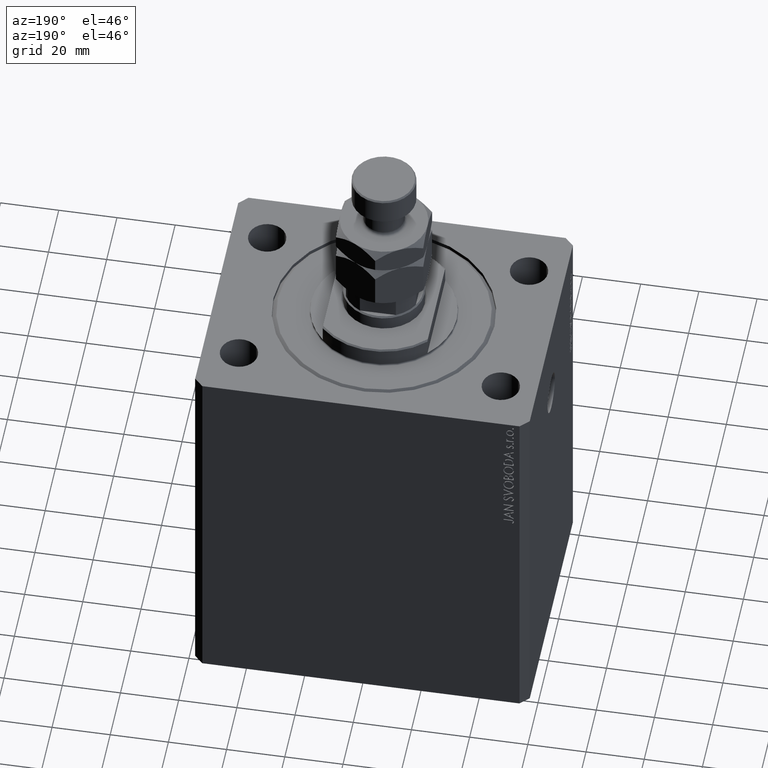
[diagram: clean part render]
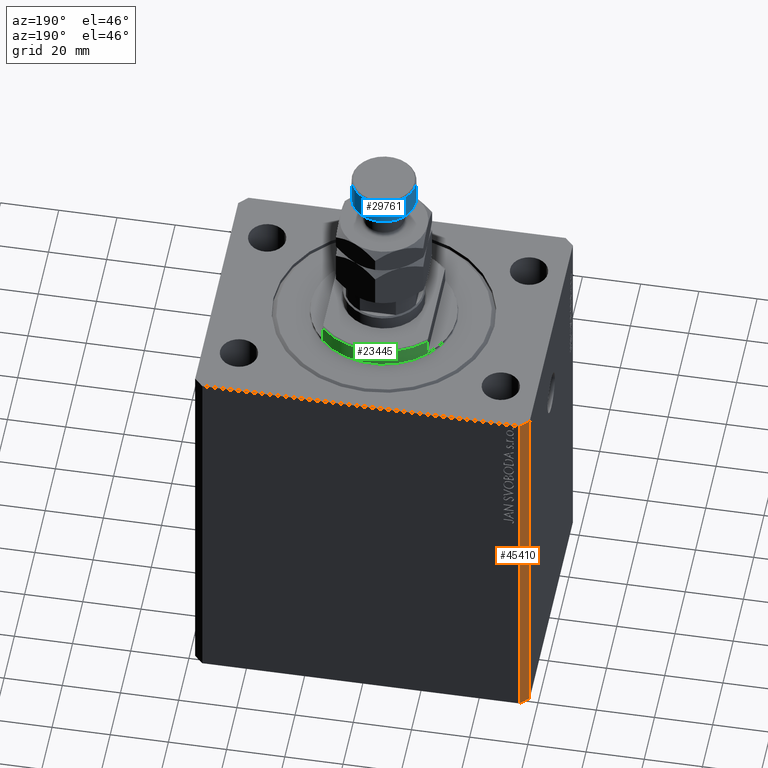
[diagram: same view with three faces highlighted in distinct colors, each labeled with its STEP entity id]
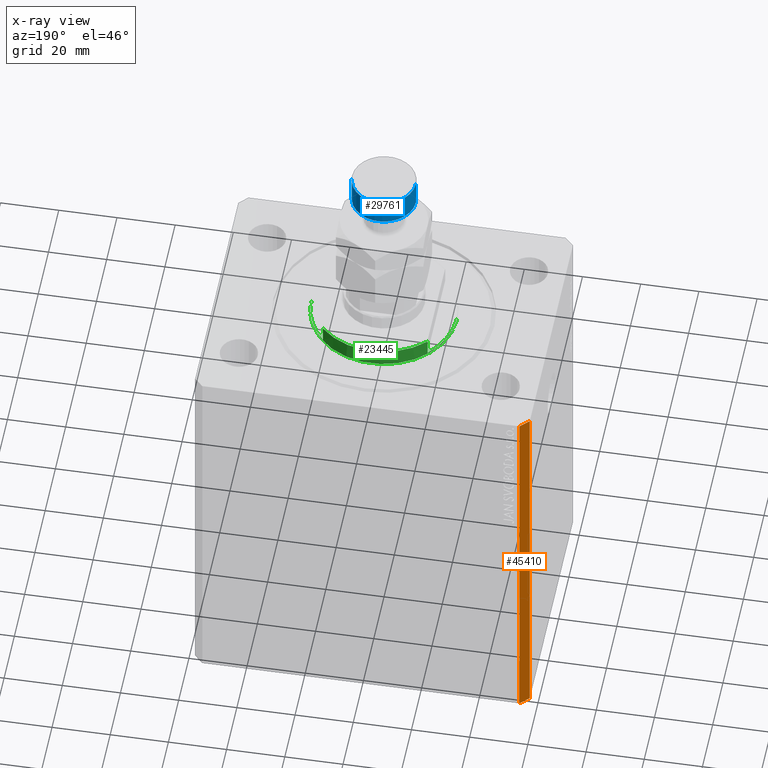
[diagram: x-ray of the same camera — body ghosted, the three highlighted faces saturated]
A machine part, auxiliary view with three faces highlighted in distinct colors.
The next image is the same camera in x-ray (body ghosted, the three faces saturated) — at least one of them is partly hidden behind the body in this view.
Their STEP definitions:

[orange] entity #45410 — the highlighted planar face has unit normal (-0.7071, 0.7071, 0).
#136 = VERTEX_POINT ( 'NONE', #39592 ) ;
#1852 = CARTESIAN_POINT ( 'NONE',  ( -54.49999999999999289, 45.00000000000000000, -135.0000000000000000 ) ) ;
#2691 = LINE ( 'NONE', #17708, #30264 ) ;
#4772 = EDGE_CURVE ( 'NONE', #31819, #10127, #14104, .T. ) ;
#10127 = VERTEX_POINT ( 'NONE', #22222 ) ;
#10561 = DIRECTION ( 'NONE',  ( 0.000000000000000000, 0.000000000000000000, 1.000000000000000000 ) ) ;
#12498 = EDGE_CURVE ( 'NONE', #45818, #136, #22352, .T. ) ;
#13909 = VECTOR ( 'NONE', #42034, 1000.000000000000000 ) ;
#14104 = LINE ( 'NONE', #17614, #16749 ) ;
#14609 = VECTOR ( 'NONE', #36589, 1000.000000000000000 ) ;
#16167 = DIRECTION ( 'NONE',  ( -0.7071067811865483499, -0.7071067811865466846, 0.000000000000000000 ) ) ;
#16264 = ORIENTED_EDGE ( 'NONE', *, *, #12498, .T. ) ;
#16749 = VECTOR ( 'NONE', #10561, 1000.000000000000000 ) ;
#17614 = CARTESIAN_POINT ( 'NONE',  ( -54.49999999999999289, 45.00000000000000000, -135.0000000000000000 ) ) ;
#17708 = CARTESIAN_POINT ( 'NONE',  ( -54.49999999999999289, 45.00000000000000000, 0.000000000000000000 ) ) ;
#19448 = PLANE ( 'NONE',  #23810 ) ;
#19910 = FACE_OUTER_BOUND ( 'NONE', #39285, .T. ) ;
#21219 = ORIENTED_EDGE ( 'NONE', *, *, #4772, .F. ) ;
#22222 = CARTESIAN_POINT ( 'NONE',  ( -54.49999999999999289, 45.00000000000000000, 0.000000000000000000 ) ) ;
#22352 = LINE ( 'NONE', #43601, #14609 ) ;
#23641 = DIRECTION ( 'NONE',  ( -0.7071067811865466846, 0.7071067811865483499, 0.000000000000000000 ) ) ;
#23810 = AXIS2_PLACEMENT_3D ( 'NONE', #1852, #23641, #16167 ) ;
#25684 = ORIENTED_EDGE ( 'NONE', *, *, #32115, .F. ) ;
#26634 = CARTESIAN_POINT ( 'NONE',  ( -54.49999999999999289, 45.00000000000000000, -135.0000000000000000 ) ) ;
#30264 = VECTOR ( 'NONE', #31958, 1000.000000000000000 ) ;
#31461 = ORIENTED_EDGE ( 'NONE', *, *, #33756, .T. ) ;
#31734 = CARTESIAN_POINT ( 'NONE',  ( -54.49999999999999289, 45.00000000000000000, -135.0000000000000000 ) ) ;
#31819 = VERTEX_POINT ( 'NONE', #26634 ) ;
#31958 = DIRECTION ( 'NONE',  ( -0.7071067811865483499, -0.7071067811865466846, 0.000000000000000000 ) ) ;
#32115 = EDGE_CURVE ( 'NONE', #10127, #136, #2691, .T. ) ;
#33756 = EDGE_CURVE ( 'NONE', #31819, #45818, #34545, .T. ) ;
#34545 = LINE ( 'NONE', #31734, #13909 ) ;
#36589 = DIRECTION ( 'NONE',  ( 0.000000000000000000, 0.000000000000000000, 1.000000000000000000 ) ) ;
#39285 = EDGE_LOOP ( 'NONE', ( #25684, #21219, #31461, #16264 ) ) ;
#39592 = CARTESIAN_POINT ( 'NONE',  ( -57.49999999999998579, 42.00000000000000711, 0.000000000000000000 ) ) ;
#42034 = DIRECTION ( 'NONE',  ( -0.7071067811865483499, -0.7071067811865466846, 0.000000000000000000 ) ) ;
#42558 = CARTESIAN_POINT ( 'NONE',  ( -57.49999999999998579, 42.00000000000000711, -135.0000000000000000 ) ) ;
#43601 = CARTESIAN_POINT ( 'NONE',  ( -57.49999999999998579, 42.00000000000000711, -135.0000000000000000 ) ) ;
#45410 = ADVANCED_FACE ( 'NONE', ( #19910 ), #19448, .T. ) ;
#45818 = VERTEX_POINT ( 'NONE', #42558 ) ;

[blue] entity #29761 — the highlighted cylindrical surface (edge-blend (fillet) strip) has radius 11 mm, axis along (-0, -0, -1).
#611 = DIRECTION ( 'NONE',  ( 1.000000000000000000, 0.000000000000000000, 0.000000000000000000 ) ) ;
#1727 = VERTEX_POINT ( 'NONE', #41551 ) ;
#2610 = DIRECTION ( 'NONE',  ( -0.000000000000000000, -0.000000000000000000, 1.000000000000000000 ) ) ;
#2841 = DIRECTION ( 'NONE',  ( 1.000000000000000000, 0.000000000000000000, 0.000000000000000000 ) ) ;
#3656 = DIRECTION ( 'NONE',  ( 0.000000000000000000, 0.000000000000000000, -1.000000000000000000 ) ) ;
#4353 = CARTESIAN_POINT ( 'NONE',  ( 0.000000000000000000, 0.000000000000000000, 44.50000000000001421 ) ) ;
#4396 = ORIENTED_EDGE ( 'NONE', *, *, #9755, .T. ) ;
#5899 = ORIENTED_EDGE ( 'NONE', *, *, #17662, .F. ) ;
#7503 = VERTEX_POINT ( 'NONE', #25188 ) ;
#9755 = EDGE_CURVE ( 'NONE', #1727, #7503, #22747, .T. ) ;
#10345 = LINE ( 'NONE', #20901, #15470 ) ;
#10425 = CIRCLE ( 'NONE', #34331, 11.00000000000000000 ) ;
#10634 = CARTESIAN_POINT ( 'NONE',  ( -11.00000000000000000, 0.000000000000000000, 45.00000000000000711 ) ) ;
#13817 = AXIS2_PLACEMENT_3D ( 'NONE', #34911, #2610, #2841 ) ;
#15470 = VECTOR ( 'NONE', #16927, 1000.000000000000000 ) ;
#16479 = EDGE_CURVE ( 'NONE', #42473, #1727, #10345, .T. ) ;
#16927 = DIRECTION ( 'NONE',  ( -0.000000000000000000, -0.000000000000000000, -1.000000000000000000 ) ) ;
#17662 = EDGE_CURVE ( 'NONE', #21439, #7503, #32379, .T. ) ;
#18667 = ORIENTED_EDGE ( 'NONE', *, *, #25913, .T. ) ;
#20799 = CYLINDRICAL_SURFACE ( 'NONE', #32192, 11.00000000000000000 ) ;
#20901 = CARTESIAN_POINT ( 'NONE',  ( 11.00000000000000000, 1.347111479062088405E-15, 45.00000000000000711 ) ) ;
#21439 = VERTEX_POINT ( 'NONE', #36656 ) ;
#22747 = CIRCLE ( 'NONE', #13817, 11.00000000000000000 ) ;
#22962 = FACE_OUTER_BOUND ( 'NONE', #25839, .T. ) ;
#25188 = CARTESIAN_POINT ( 'NONE',  ( -11.00000000000000000, 0.000000000000000000, 35.50000000000001421 ) ) ;
#25839 = EDGE_LOOP ( 'NONE', ( #18667, #30249, #4396, #5899 ) ) ;
#25913 = EDGE_CURVE ( 'NONE', #21439, #42473, #10425, .T. ) ;
#26444 = CARTESIAN_POINT ( 'NONE',  ( 0.000000000000000000, 0.000000000000000000, 45.00000000000000711 ) ) ;
#29761 = ADVANCED_FACE ( 'NONE', ( #22962 ), #20799, .T. ) ;
#30249 = ORIENTED_EDGE ( 'NONE', *, *, #16479, .T. ) ;
#31122 = CARTESIAN_POINT ( 'NONE',  ( 11.00000000000000000, 1.347111479062088405E-15, 44.50000000000001421 ) ) ;
#32192 = AXIS2_PLACEMENT_3D ( 'NONE', #26444, #35033, #33920 ) ;
#32379 = LINE ( 'NONE', #10634, #34142 ) ;
#33920 = DIRECTION ( 'NONE',  ( -1.000000000000000000, 0.000000000000000000, 0.000000000000000000 ) ) ;
#34142 = VECTOR ( 'NONE', #35877, 1000.000000000000000 ) ;
#34331 = AXIS2_PLACEMENT_3D ( 'NONE', #4353, #3656, #611 ) ;
#34911 = CARTESIAN_POINT ( 'NONE',  ( 0.000000000000000000, 0.000000000000000000, 35.50000000000001421 ) ) ;
#35033 = DIRECTION ( 'NONE',  ( -0.000000000000000000, -0.000000000000000000, -1.000000000000000000 ) ) ;
#35877 = DIRECTION ( 'NONE',  ( -0.000000000000000000, -0.000000000000000000, -1.000000000000000000 ) ) ;
#36656 = CARTESIAN_POINT ( 'NONE',  ( -11.00000000000000000, 0.000000000000000000, 44.50000000000001421 ) ) ;
#41551 = CARTESIAN_POINT ( 'NONE',  ( 11.00000000000000000, 1.347111479062088405E-15, 35.50000000000001421 ) ) ;
#42473 = VERTEX_POINT ( 'NONE', #31122 ) ;

[green] entity #23445 — the highlighted cylindrical surface (partial cylindrical patch) has radius 25 mm, axis along (0, 0, -1).
#67 = DIRECTION ( 'NONE',  ( -0.000000000000000000, -0.000000000000000000, 1.000000000000000000 ) ) ;
#849 = CARTESIAN_POINT ( 'NONE',  ( 25.00000000000000000, 0.000000000000000000, -1.000000000000000000 ) ) ;
#982 = AXIS2_PLACEMENT_3D ( 'NONE', #1666, #37697, #22764 ) ;
#1292 = ORIENTED_EDGE ( 'NONE', *, *, #25697, .T. ) ;
#1666 = CARTESIAN_POINT ( 'NONE',  ( 0.000000000000000000, 0.000000000000000000, -1.000000000000000000 ) ) ;
#1791 = ORIENTED_EDGE ( 'NONE', *, *, #31096, .F. ) ;
#2347 = EDGE_CURVE ( 'NONE', #20075, #20803, #15939, .T. ) ;
#3057 = DIRECTION ( 'NONE',  ( -0.000000000000000000, -0.000000000000000000, 1.000000000000000000 ) ) ;
#3111 = CARTESIAN_POINT ( 'NONE',  ( -18.00000000000000000, 17.34935157289747920, -1.000000000000000000 ) ) ;
#4205 = VECTOR ( 'NONE', #67, 1000.000000000000000 ) ;
#4695 = DIRECTION ( 'NONE',  ( 1.000000000000000000, 0.000000000000000000, 0.000000000000000000 ) ) ;
#4867 = VECTOR ( 'NONE', #3057, 1000.000000000000000 ) ;
#5216 = DIRECTION ( 'NONE',  ( -1.000000000000000000, 0.000000000000000000, 0.000000000000000000 ) ) ;
#5259 = VERTEX_POINT ( 'NONE', #9574 ) ;
#5709 = VERTEX_POINT ( 'NONE', #3111 ) ;
#6594 = DIRECTION ( 'NONE',  ( -0.000000000000000000, -0.000000000000000000, 1.000000000000000000 ) ) ;
#9574 = CARTESIAN_POINT ( 'NONE',  ( 25.00000000000000000, 0.000000000000000000, -0.4999999999999995559 ) ) ;
#10158 = ORIENTED_EDGE ( 'NONE', *, *, #16281, .T. ) ;
#10596 = FACE_OUTER_BOUND ( 'NONE', #21263, .T. ) ;
#11017 = CARTESIAN_POINT ( 'NONE',  ( 25.00000000000000000, 0.000000000000000000, -7.000000000000000000 ) ) ;
#12443 = AXIS2_PLACEMENT_3D ( 'NONE', #15311, #39853, #40322 ) ;
#12982 = CARTESIAN_POINT ( 'NONE',  ( -25.00000000000000000, 3.061616997868383043E-15, -0.4999999999999995559 ) ) ;
#15016 = VERTEX_POINT ( 'NONE', #12982 ) ;
#15311 = CARTESIAN_POINT ( 'NONE',  ( 0.000000000000000000, 0.000000000000000000, -6.499999999999971578 ) ) ;
#15419 = CARTESIAN_POINT ( 'NONE',  ( -25.00000000000000000, 3.061616997868383043E-15, -1.000000000000000000 ) ) ;
#15939 = CIRCLE ( 'NONE', #982, 25.00000000000000000 ) ;
#15967 = VERTEX_POINT ( 'NONE', #15419 ) ;
#16281 = EDGE_CURVE ( 'NONE', #23410, #38919, #24411, .T. ) ;
#17023 = EDGE_CURVE ( 'NONE', #38919, #5709, #35532, .T. ) ;
#18035 = ORIENTED_EDGE ( 'NONE', *, *, #34083, .F. ) ;
#18298 = LINE ( 'NONE', #11017, #4867 ) ;
#19582 = CIRCLE ( 'NONE', #45714, 25.00000000000000000 ) ;
#20075 = VERTEX_POINT ( 'NONE', #38090 ) ;
#20698 = CARTESIAN_POINT ( 'NONE',  ( 18.00000000000000000, 17.34935157289748986, -6.499999999999978684 ) ) ;
#20803 = VERTEX_POINT ( 'NONE', #849 ) ;
#21263 = EDGE_LOOP ( 'NONE', ( #1791, #42738, #1292, #18035, #27504, #37533, #10158, #41143 ) ) ;
#22215 = CARTESIAN_POINT ( 'NONE',  ( -18.00000000000000000, 17.34935157289747920, -7.000000000000000000 ) ) ;
#22282 = DIRECTION ( 'NONE',  ( -0.000000000000000000, -0.000000000000000000, -1.000000000000000000 ) ) ;
#22764 = DIRECTION ( 'NONE',  ( -1.000000000000000000, 0.000000000000000000, 0.000000000000000000 ) ) ;
#23410 = VERTEX_POINT ( 'NONE', #20698 ) ;
#23445 = ADVANCED_FACE ( 'NONE', ( #10596 ), #24644, .T. ) ;
#24182 = CARTESIAN_POINT ( 'NONE',  ( 0.000000000000000000, 0.000000000000000000, -7.000000000000000000 ) ) ;
#24392 = LINE ( 'NONE', #38666, #30692 ) ;
#24411 = CIRCLE ( 'NONE', #12443, 25.00000000000000000 ) ;
#24644 = CYLINDRICAL_SURFACE ( 'NONE', #43996, 25.00000000000000000 ) ;
#25019 = DIRECTION ( 'NONE',  ( -0.000000000000000000, -0.000000000000000000, 1.000000000000000000 ) ) ;
#25352 = CIRCLE ( 'NONE', #43268, 25.00000000000000000 ) ;
#25430 = CARTESIAN_POINT ( 'NONE',  ( 0.000000000000000000, 0.000000000000000000, -1.000000000000000000 ) ) ;
#25697 = EDGE_CURVE ( 'NONE', #15016, #5259, #25352, .T. ) ;
#27504 = ORIENTED_EDGE ( 'NONE', *, *, #2347, .F. ) ;
#28610 = DIRECTION ( 'NONE',  ( -0.000000000000000000, -0.000000000000000000, 1.000000000000000000 ) ) ;
#28624 = CARTESIAN_POINT ( 'NONE',  ( -25.00000000000000000, 3.061616997868383043E-15, -7.000000000000000000 ) ) ;
#29518 = EDGE_CURVE ( 'NONE', #23410, #20075, #24392, .T. ) ;
#29930 = CARTESIAN_POINT ( 'NONE',  ( -18.00000000000000000, 17.34935157289748986, -6.499999999999978684 ) ) ;
#30409 = VECTOR ( 'NONE', #25019, 1000.000000000000000 ) ;
#30692 = VECTOR ( 'NONE', #6594, 1000.000000000000000 ) ;
#31096 = EDGE_CURVE ( 'NONE', #15967, #5709, #19582, .T. ) ;
#34083 = EDGE_CURVE ( 'NONE', #20803, #5259, #18298, .T. ) ;
#34929 = DIRECTION ( 'NONE',  ( 1.000000000000000000, 0.000000000000000000, 0.000000000000000000 ) ) ;
#35532 = LINE ( 'NONE', #22215, #30409 ) ;
#37273 = DIRECTION ( 'NONE',  ( 0.000000000000000000, 0.000000000000000000, -1.000000000000000000 ) ) ;
#37533 = ORIENTED_EDGE ( 'NONE', *, *, #29518, .F. ) ;
#37697 = DIRECTION ( 'NONE',  ( 0.000000000000000000, 0.000000000000000000, -1.000000000000000000 ) ) ;
#38090 = CARTESIAN_POINT ( 'NONE',  ( 18.00000000000000000, 17.34935157289747920, -1.000000000000000000 ) ) ;
#38666 = CARTESIAN_POINT ( 'NONE',  ( 18.00000000000000000, 17.34935157289747920, -7.000000000000000000 ) ) ;
#38919 = VERTEX_POINT ( 'NONE', #29930 ) ;
#39814 = EDGE_CURVE ( 'NONE', #15967, #15016, #43964, .T. ) ;
#39853 = DIRECTION ( 'NONE',  ( 0.000000000000000000, 0.000000000000000000, 1.000000000000000000 ) ) ;
#40322 = DIRECTION ( 'NONE',  ( -1.000000000000000000, 0.000000000000000000, 0.000000000000000000 ) ) ;
#41143 = ORIENTED_EDGE ( 'NONE', *, *, #17023, .T. ) ;
#42738 = ORIENTED_EDGE ( 'NONE', *, *, #39814, .T. ) ;
#43268 = AXIS2_PLACEMENT_3D ( 'NONE', #45094, #22282, #4695 ) ;
#43964 = LINE ( 'NONE', #28624, #4205 ) ;
#43996 = AXIS2_PLACEMENT_3D ( 'NONE', #24182, #28610, #34929 ) ;
#45094 = CARTESIAN_POINT ( 'NONE',  ( 0.000000000000000000, 0.000000000000000000, -0.4999999999999995559 ) ) ;
#45714 = AXIS2_PLACEMENT_3D ( 'NONE', #25430, #37273, #5216 ) ;